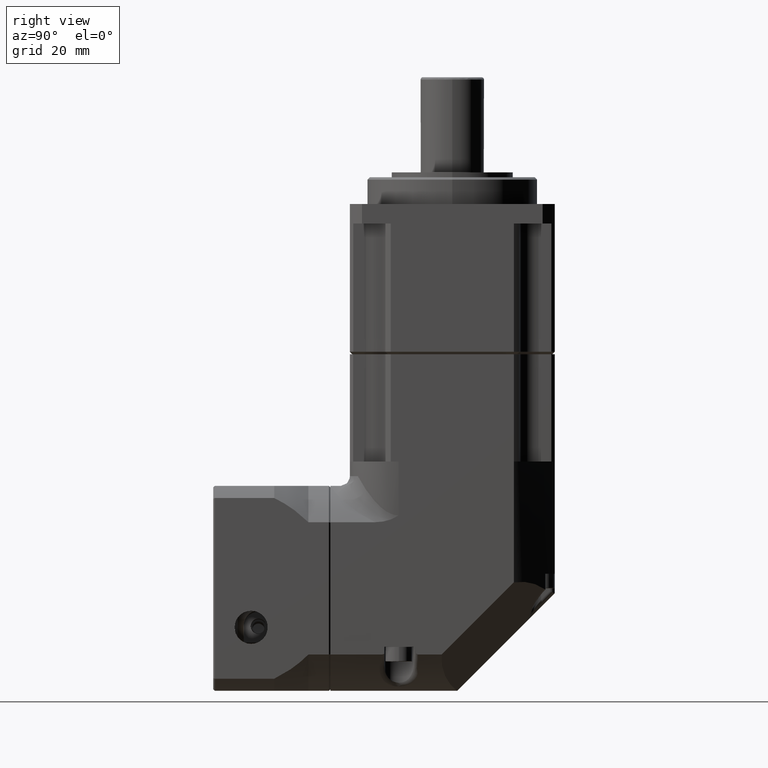
[diagram: clean part render]
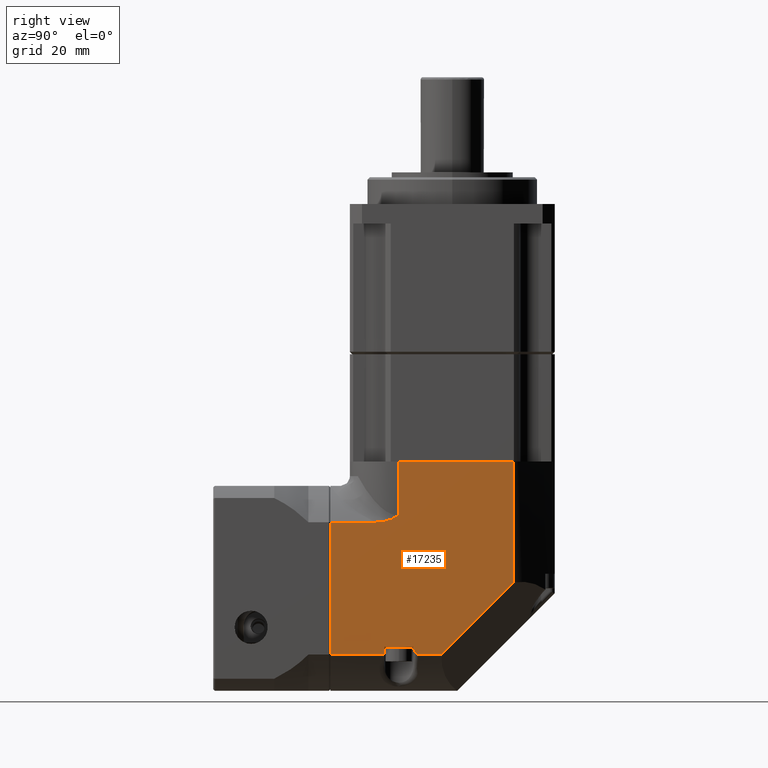
[diagram: same view with one face highlighted and labeled with its STEP entity id]
A machine part, right view. The second image highlights one B-rep face of the part: STEP entity #17235.
In plain terms, the highlighted planar face has unit normal (1, 0, 0).
Its self-contained STEP definition (entity closure, byte-faithful):
#108 = CARTESIAN_POINT ( 'NONE',  ( 21.00000000000000000, 11.78850872954681300, -15.08398018612353100 ) ) ;
#151 = VERTEX_POINT ( 'NONE', #1763 ) ;
#246 = CARTESIAN_POINT ( 'NONE',  ( 20.99999999999999600, 13.82935090452482100, -14.15367475274821100 ) ) ;
#300 = VECTOR ( 'NONE', #789, 1000.000000000000000 ) ;
#344 = EDGE_CURVE ( 'NONE', #12904, #15798, #5852, .T. ) ;
#635 = CARTESIAN_POINT ( 'NONE',  ( 21.00000000000000000, 22.82873831595128100, -42.56465996625056600 ) ) ;
#718 = ORIENTED_EDGE ( 'NONE', *, *, #10954, .T. ) ;
#789 = DIRECTION ( 'NONE',  ( -0.0000000000000000000, -1.000000000000000000, -0.0000000000000000000 ) ) ;
#793 = VERTEX_POINT ( 'NONE', #16671 ) ;
#1219 = CARTESIAN_POINT ( 'NONE',  ( 20.99999712522957300, 14.00000000094810200, -14.03337045290828700 ) ) ;
#1331 = DIRECTION ( 'NONE',  ( 0.0000000000000000000, 0.0000000000000000000, -1.000000000000000000 ) ) ;
#1573 = ORIENTED_EDGE ( 'NONE', *, *, #4089, .T. ) ;
#1763 = CARTESIAN_POINT ( 'NONE',  ( 20.99992334368337100, 10.56027034489788400, -42.56457621758713800 ) ) ;
#1948 = CARTESIAN_POINT ( 'NONE',  ( 21.00000000000000000, 17.88702522047810800, -42.54406711733994200 ) ) ;
#1969 = ORIENTED_EDGE ( 'NONE', *, *, #7503, .T. ) ;
#2161 = EDGE_CURVE ( 'NONE', #5887, #5253, #10892, .T. ) ;
#2300 = ORIENTED_EDGE ( 'NONE', *, *, #17802, .T. ) ;
#2530 = LINE ( 'NONE', #17075, #5126 ) ;
#2686 = VECTOR ( 'NONE', #13728, 1000.000000000000000 ) ;
#2728 = ORIENTED_EDGE ( 'NONE', *, *, #11422, .T. ) ;
#2878 = EDGE_CURVE ( 'NONE', #7625, #17662, #9094, .T. ) ;
#2918 = VECTOR ( 'NONE', #1331, 1000.000000000000000 ) ;
#3089 = CARTESIAN_POINT ( 'NONE',  ( 21.00000000000000000, 13.23287771532890900, -14.50381881507347100 ) ) ;
#3158 = CARTESIAN_POINT ( 'NONE',  ( 21.00000000000000400, 13.56268867470118500, -14.32370271429898900 ) ) ;
#3326 = ORIENTED_EDGE ( 'NONE', *, *, #5619, .T. ) ;
#3568 = CARTESIAN_POINT ( 'NONE',  ( 20.99999999999997900, 10.65035856160384700, -42.56425697950626100 ) ) ;
#3761 = VECTOR ( 'NONE', #11330, 1000.000000000000000 ) ;
#3854 = ORIENTED_EDGE ( 'NONE', *, *, #2878, .T. ) ;
#4089 = EDGE_CURVE ( 'NONE', #8319, #7625, #13485, .T. ) ;
#4099 = DIRECTION ( 'NONE',  ( 1.000000000000000000, -0.0000000000000000000, 0.0000000000000000000 ) ) ;
#4194 = EDGE_CURVE ( 'NONE', #8319, #151, #13488, .T. ) ;
#4522 = LINE ( 'NONE', #12153, #18357 ) ;
#4564 = EDGE_CURVE ( 'NONE', #14522, #7525, #8557, .T. ) ;
#4736 = CARTESIAN_POINT ( 'NONE',  ( 20.99999999999999300, 10.90145463127017000, -15.32793844234629400 ) ) ;
#4849 = CARTESIAN_POINT ( 'NONE',  ( 21.00000000000000000, 17.97060296764024700, -42.56465996625056600 ) ) ;
#4881 = DIRECTION ( 'NONE',  ( -0.0000000000000000000, -0.0000000000000000000, 1.000000000000000000 ) ) ;
#5126 = VECTOR ( 'NONE', #13860, 1000.000000000000000 ) ;
#5157 = CARTESIAN_POINT ( 'NONE',  ( 21.00000000000000000, 0.0000000000000000000, -3.000000000000002200 ) ) ;
#5193 = FACE_OUTER_BOUND ( 'NONE', #16534, .T. ) ;
#5253 = VERTEX_POINT ( 'NONE', #13408 ) ;
#5406 = LINE ( 'NONE', #15858, #3761 ) ;
#5448 = AXIS2_PLACEMENT_3D ( 'NONE', #11499, #4099, #14449 ) ;
#5619 = EDGE_CURVE ( 'NONE', #17662, #793, #17878, .T. ) ;
#5852 = LINE ( 'NONE', #5157, #300 ) ;
#5887 = VERTEX_POINT ( 'NONE', #1219 ) ;
#5922 = CARTESIAN_POINT ( 'NONE',  ( 21.00000000000000000, 11.05544090816150100, -41.00000000000000000 ) ) ;
#6054 = CARTESIAN_POINT ( 'NONE',  ( 20.99999999999998900, 10.06210590241370500, -15.43534003621600400 ) ) ;
#6349 = CARTESIAN_POINT ( 'NONE',  ( 21.00000000000000000, 18.05544090816150100, -42.56465996625055900 ) ) ;
#6488 = CARTESIAN_POINT ( 'NONE',  ( 20.99999999999999600, 17.08870489949610400, -41.16609583714316000 ) ) ;
#6612 = CARTESIAN_POINT ( 'NONE',  ( 21.00000000000000000, 17.73531861819856600, -42.47343041986980000 ) ) ;
#7182 = EDGE_CURVE ( 'NONE', #9650, #12184, #2530, .T. ) ;
#7364 = CARTESIAN_POINT ( 'NONE',  ( 21.00000000000000000, 37.61942946412396100, -3.000000000000002700 ) ) ;
#7503 = EDGE_CURVE ( 'NONE', #7525, #151, #13300, .T. ) ;
#7525 = VERTEX_POINT ( 'NONE', #10447 ) ;
#7607 = CARTESIAN_POINT ( 'NONE',  ( 21.00000000000000400, 12.04561693501342600, -15.00612579854027300 ) ) ;
#7625 = VERTEX_POINT ( 'NONE', #5922 ) ;
#8319 = VERTEX_POINT ( 'NONE', #18574 ) ;
#8557 = LINE ( 'NONE', #17563, #2918 ) ;
#9022 = ORIENTED_EDGE ( 'NONE', *, *, #4194, .F. ) ;
#9094 = LINE ( 'NONE', #14299, #10269 ) ;
#9269 = CARTESIAN_POINT ( 'NONE',  ( 20.99999999999999600, 12.98972737725761900, -14.62508632695388000 ) ) ;
#9298 = CARTESIAN_POINT ( 'NONE',  ( 21.00000000000000000, 11.05544090816150100, 0.0000000000000000000 ) ) ;
#9379 = CARTESIAN_POINT ( 'NONE',  ( 21.00000000000000000, 17.19346502259459800, -41.64927022489028700 ) ) ;
#9444 = CARTESIAN_POINT ( 'NONE',  ( 21.00000000000000400, 17.48386766032308900, -42.25233871660680800 ) ) ;
#9450 = VECTOR ( 'NONE', #14977, 1000.000000000000000 ) ;
#9636 = CARTESIAN_POINT ( 'NONE',  ( 20.99999999999999600, 17.39089639340929600, -42.10819640651919100 ) ) ;
#9650 = VERTEX_POINT ( 'NONE', #635 ) ;
#9656 = VECTOR ( 'NONE', #18873, 1000.000000000000000 ) ;
#10104 = LINE ( 'NONE', #12910, #9656 ) ;
#10269 = VECTOR ( 'NONE', #12668, 1000.000000000000000 ) ;
#10354 = CARTESIAN_POINT ( 'NONE',  ( 21.00000000000000000, 0.0000000000000000000, -42.56465996625056600 ) ) ;
#10432 = CARTESIAN_POINT ( 'NONE',  ( 21.00000000000000000, -5.699639978734572000E-011, -15.43533760307100900 ) ) ;
#10447 = CARTESIAN_POINT ( 'NONE',  ( 21.00000000000000000, -2.264367079257700900E-011, -42.56465996625054500 ) ) ;
#10513 = CARTESIAN_POINT ( 'NONE',  ( 21.00000000000000000, 12.69657240660342400, -14.76188183298234200 ) ) ;
#10650 = DIRECTION ( 'NONE',  ( -0.0000000000000000000, 1.000000000000000000, 4.585547486636280100E-033 ) ) ;
#10892 = B_SPLINE_CURVE_WITH_KNOTS ( 'NONE', 3,
 ( #12078, #246, #3158, #3089, #13634, #9269, #12208, #10513, #13562, #7607, #12004, #108, #14998, #15140, #4736, #6054, #15275 ),
 .UNSPECIFIED., .F., .F.,
 ( 4, 1, 1, 2, 2, 1, 1, 1, 2, 2, 4 ),
 ( 0.0000000000000000000, 0.1249999999999998300, 0.1874999999999997500, 0.2187499999999995000, 0.2499999999999992200, 0.3749999999999986700, 0.4374999999999979500, 0.4687499999999972200, 0.4843749999999973400, 0.4999999999999975000, 1.000000000000000000 ),
 .UNSPECIFIED. ) ;
#10954 = EDGE_CURVE ( 'NONE', #12184, #12904, #4522, .T. ) ;
#10965 = ORIENTED_EDGE ( 'NONE', *, *, #7182, .T. ) ;
#11181 = ORIENTED_EDGE ( 'NONE', *, *, #2161, .T. ) ;
#11236 = CARTESIAN_POINT ( 'NONE',  ( 21.00000000000000000, 10.73768521937662400, -42.54405625095634500 ) ) ;
#11330 = DIRECTION ( 'NONE',  ( -0.0000000000000000000, -1.000000000000000000, -0.0000000000000000000 ) ) ;
#11347 = ORIENTED_EDGE ( 'NONE', *, *, #344, .T. ) ;
#11422 = EDGE_CURVE ( 'NONE', #793, #9650, #15767, .T. ) ;
#11499 = CARTESIAN_POINT ( 'NONE',  ( 21.00000000000000000, 0.0000000000000000000, 0.0000000000000000000 ) ) ;
#11554 = ORIENTED_EDGE ( 'NONE', *, *, #4564, .T. ) ;
#12004 = CARTESIAN_POINT ( 'NONE',  ( 20.99999999999999600, 11.86598260409504000, -15.06143859500130400 ) ) ;
#12015 = CARTESIAN_POINT ( 'NONE',  ( 21.00000000000000000, -1.811493663366229500E-011, -42.56465996625054500 ) ) ;
#12078 = CARTESIAN_POINT ( 'NONE',  ( 20.99999712522957300, 14.00000000094810200, -14.03337045290828700 ) ) ;
#12153 = CARTESIAN_POINT ( 'NONE',  ( 21.00000000000000000, 37.61942946412396100, 0.0000000000000000000 ) ) ;
#12184 = VERTEX_POINT ( 'NONE', #15608 ) ;
#12208 = CARTESIAN_POINT ( 'NONE',  ( 21.00000000000000000, 12.93910282281325900, -14.64923997459095000 ) ) ;
#12486 = CARTESIAN_POINT ( 'NONE',  ( 20.99992334368337100, 10.56027034489788400, -42.56457621758713800 ) ) ;
#12504 = CARTESIAN_POINT ( 'NONE',  ( 21.00000000000000000, 17.11487564868987500, -41.32944329169137600 ) ) ;
#12668 = DIRECTION ( 'NONE',  ( 0.0000000000000000000, 1.000000000000000000, 0.0000000000000000000 ) ) ;
#12904 = VERTEX_POINT ( 'NONE', #7364 ) ;
#12910 = CARTESIAN_POINT ( 'NONE',  ( 21.00000000000000000, 13.99999999999999800, 0.0000000000000000000 ) ) ;
#13300 = LINE ( 'NONE', #12015, #17762 ) ;
#13408 = CARTESIAN_POINT ( 'NONE',  ( 20.99999816769550500, 9.166785722745920900, -15.43533391373391500 ) ) ;
#13485 = LINE ( 'NONE', #9298, #2686 ) ;
#13488 = B_SPLINE_CURVE_WITH_KNOTS ( 'NONE', 3,
 ( #18306, #15170, #17190, #11236, #3568, #12486 ),
 .UNSPECIFIED., .F., .F.,
 ( 4, 2, 4 ),
 ( 3.469446951953614200E-018, 0.0002664163079953934100, 0.0005328326159907833500 ),
 .UNSPECIFIED. ) ;
#13562 = CARTESIAN_POINT ( 'NONE',  ( 20.99999999999999600, 12.40033342474027500, -14.88463720358145200 ) ) ;
#13634 = CARTESIAN_POINT ( 'NONE',  ( 21.00000000000000000, 13.08752194175978500, -14.57710074661223100 ) ) ;
#13728 = DIRECTION ( 'NONE',  ( -0.0000000000000000000, -0.0000000000000000000, 1.000000000000000000 ) ) ;
#13810 = CARTESIAN_POINT ( 'NONE',  ( 21.00000000000000400, 17.07303785696960200, -41.00000000000000700 ) ) ;
#13860 = DIRECTION ( 'NONE',  ( 0.0000000000000000000, 0.7071067811865472400, 0.7071067811865479100 ) ) ;
#14299 = CARTESIAN_POINT ( 'NONE',  ( 21.00000000000000000, 0.0000000000000000000, -41.00000000000000000 ) ) ;
#14449 = DIRECTION ( 'NONE',  ( 0.0000000000000000000, 0.0000000000000000000, -1.000000000000000000 ) ) ;
#14522 = VERTEX_POINT ( 'NONE', #10432 ) ;
#14977 = DIRECTION ( 'NONE',  ( 0.0000000000000000000, 1.000000000000000000, 0.0000000000000000000 ) ) ;
#14998 = CARTESIAN_POINT ( 'NONE',  ( 21.00000000000000000, 11.73675109479775900, -15.09874927063270200 ) ) ;
#15140 = CARTESIAN_POINT ( 'NONE',  ( 21.00000000000000000, 11.70931139032345100, -15.10641763917209000 ) ) ;
#15170 = CARTESIAN_POINT ( 'NONE',  ( 21.00000000000000000, 10.98166659378232200, -42.43580554791728300 ) ) ;
#15275 = CARTESIAN_POINT ( 'NONE',  ( 20.99999816769550500, 9.166785722745920900, -15.43533391373391500 ) ) ;
#15323 = CARTESIAN_POINT ( 'NONE',  ( 21.00000000000000000, 17.24542857634691400, -41.80586877665888300 ) ) ;
#15516 = CARTESIAN_POINT ( 'NONE',  ( 20.99999999999999600, 17.66597308063635600, -42.42331645603398000 ) ) ;
#15608 = CARTESIAN_POINT ( 'NONE',  ( 21.00000000000000000, 37.61942946412394000, -27.77396881807788300 ) ) ;
#15767 = LINE ( 'NONE', #10354, #9450 ) ;
#15798 = VERTEX_POINT ( 'NONE', #18874 ) ;
#15858 = CARTESIAN_POINT ( 'NONE',  ( 21.00000000000000000, 0.0000000000000000000, -15.43533517239255700 ) ) ;
#16534 = EDGE_LOOP ( 'NONE', ( #2728, #10965, #718, #11347, #2300, #11181, #16961, #11554, #1969, #9022, #1573, #3854, #3326 ) ) ;
#16671 = CARTESIAN_POINT ( 'NONE',  ( 21.00000000000000000, 18.05544090816150100, -42.56465996625055900 ) ) ;
#16961 = ORIENTED_EDGE ( 'NONE', *, *, #18220, .T. ) ;
#17075 = CARTESIAN_POINT ( 'NONE',  ( 21.00000000000000000, 22.82873831595125200, -42.56465996625058100 ) ) ;
#17183 = CARTESIAN_POINT ( 'NONE',  ( 21.00000000000000400, 17.07303785696960200, -41.00000000000000700 ) ) ;
#17190 = CARTESIAN_POINT ( 'NONE',  ( 21.00000000000000400, 10.90424002517282900, -42.47940154314099500 ) ) ;
#17235 = ADVANCED_FACE ( 'NONE', ( #5193 ), #19019, .T. ) ;
#17563 = CARTESIAN_POINT ( 'NONE',  ( 21.00000000000000000, -3.544105113550966000E-011, 0.0000000000000000000 ) ) ;
#17662 = VERTEX_POINT ( 'NONE', #17183 ) ;
#17762 = VECTOR ( 'NONE', #10650, 1000.000000000000000 ) ;
#17802 = EDGE_CURVE ( 'NONE', #15798, #5887, #10104, .T. ) ;
#17878 = B_SPLINE_CURVE_WITH_KNOTS ( 'NONE', 3,
 ( #13810, #6488, #12504, #9379, #15323, #9636, #9444, #15516, #6612, #1948, #4849, #6349 ),
 .UNSPECIFIED., .F., .F.,
 ( 4, 2, 2, 2, 2, 4 ),
 ( 0.0000000000000000000, 0.0004939562896356348500, 0.0009879125792712697000, 0.001481868868906904400, 0.001728847013724718800, 0.001975825158542532900 ),
 .UNSPECIFIED. ) ;
#18220 = EDGE_CURVE ( 'NONE', #5253, #14522, #5406, .T. ) ;
#18306 = CARTESIAN_POINT ( 'NONE',  ( 20.99998737492486700, 11.05543258027858900, -42.38515111721608300 ) ) ;
#18357 = VECTOR ( 'NONE', #4881, 1000.000000000000000 ) ;
#18574 = CARTESIAN_POINT ( 'NONE',  ( 20.99998737492486700, 11.05543258027858900, -42.38515111721608300 ) ) ;
#18873 = DIRECTION ( 'NONE',  ( 0.0000000000000000000, 0.0000000000000000000, -1.000000000000000000 ) ) ;
#18874 = CARTESIAN_POINT ( 'NONE',  ( 21.00000000000000000, 13.99999999999999800, -3.000000000000001800 ) ) ;
#19019 = PLANE ( 'NONE',  #5448 ) ;